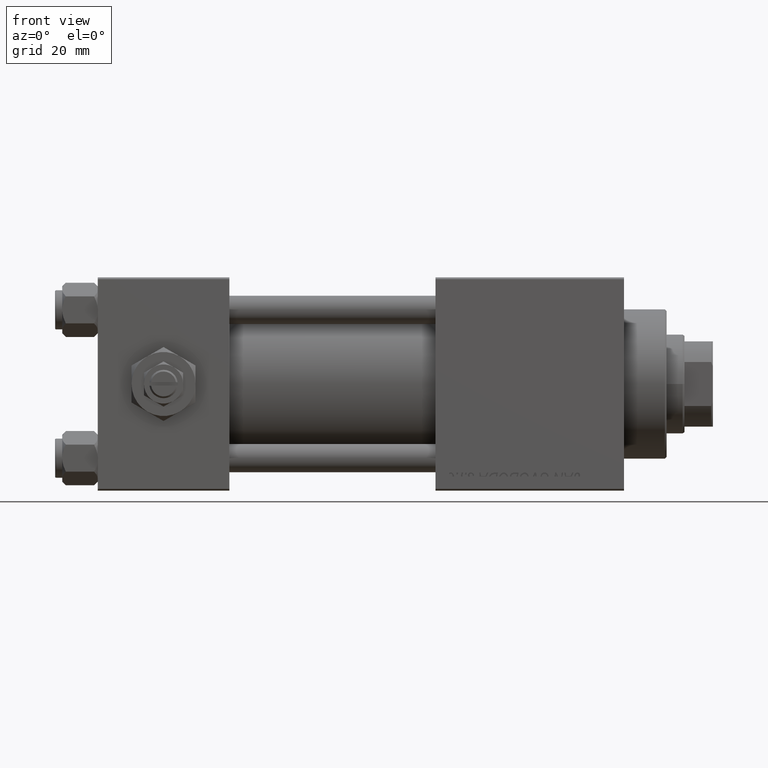
[diagram: clean part render]
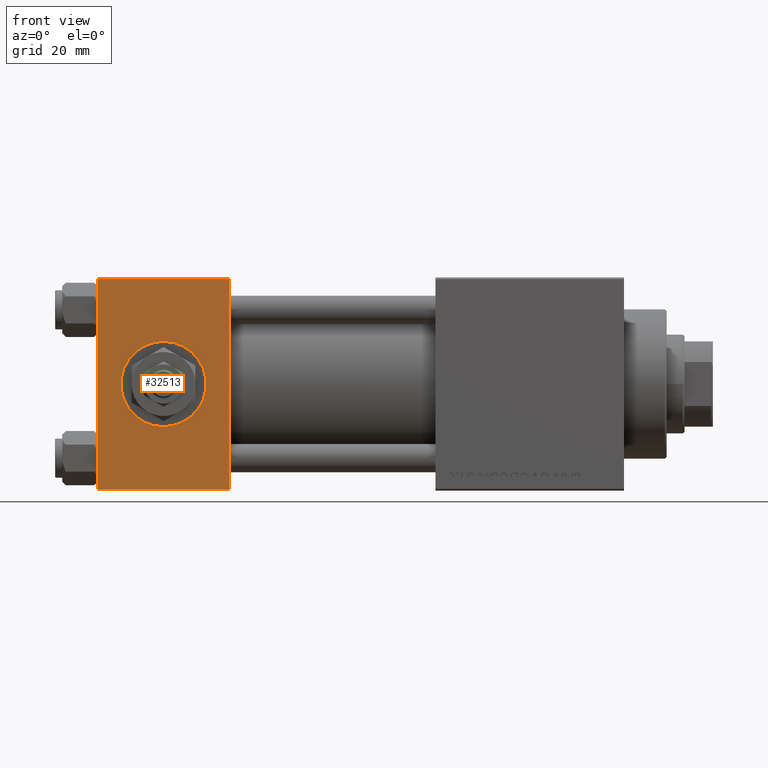
[diagram: same view with one face highlighted and labeled with its STEP entity id]
A machine part, front view. The second image highlights one B-rep face of the part: STEP entity #32513.
In plain terms, the highlighted planar face has unit normal (0, 1, 0).
Its self-contained STEP definition (entity closure, byte-faithful):
#270 = VERTEX_POINT ( 'NONE', #3207 ) ;
#500 = CARTESIAN_POINT ( 'NONE',  ( 18.50000000000000000, -30.00000000000000000, -12.00000000000000178 ) ) ;
#2185 = DIRECTION ( 'NONE',  ( 0.000000000000000000, 0.000000000000000000, -1.000000000000000000 ) ) ;
#3207 = CARTESIAN_POINT ( 'NONE',  ( 37.00000000000000000, -30.00000000000000000, -29.50000000000001776 ) ) ;
#4422 = LINE ( 'NONE', #51956, #48053 ) ;
#4831 = AXIS2_PLACEMENT_3D ( 'NONE', #43333, #7374, #48295 ) ;
#5228 = VERTEX_POINT ( 'NONE', #500 ) ;
#7340 = DIRECTION ( 'NONE',  ( 0.000000000000000000, 0.000000000000000000, -1.000000000000000000 ) ) ;
#7374 = DIRECTION ( 'NONE',  ( -0.000000000000000000, 1.000000000000000000, 0.000000000000000000 ) ) ;
#7907 = ORIENTED_EDGE ( 'NONE', *, *, #41885, .T. ) ;
#10169 = ORIENTED_EDGE ( 'NONE', *, *, #51531, .T. ) ;
#11303 = FACE_BOUND ( 'NONE', #35669, .T. ) ;
#11775 = ORIENTED_EDGE ( 'NONE', *, *, #18437, .T. ) ;
#13007 = DIRECTION ( 'NONE',  ( 0.000000000000000000, 0.000000000000000000, -1.000000000000000000 ) ) ;
#15154 = CARTESIAN_POINT ( 'NONE',  ( 0.000000000000000000, -30.00000000000000000, -29.50000000000001776 ) ) ;
#16062 = LINE ( 'NONE', #44161, #41821 ) ;
#16282 = CARTESIAN_POINT ( 'NONE',  ( 0.000000000000000000, -30.00000000000000000, 29.49999999999999289 ) ) ;
#16903 = VERTEX_POINT ( 'NONE', #40586 ) ;
#17315 = CIRCLE ( 'NONE', #46700, 12.00000000000000178 ) ;
#17469 = ORIENTED_EDGE ( 'NONE', *, *, #47493, .F. ) ;
#18437 = EDGE_CURVE ( 'NONE', #39599, #41814, #4422, .T. ) ;
#18459 = CARTESIAN_POINT ( 'NONE',  ( 37.00000000000000000, -30.00000000000000000, 29.99999999999999289 ) ) ;
#18814 = CARTESIAN_POINT ( 'NONE',  ( 18.50000000000000000, -30.00000000000000000, 12.00000000000000178 ) ) ;
#19378 = CIRCLE ( 'NONE', #26108, 12.00000000000000178 ) ;
#19654 = ORIENTED_EDGE ( 'NONE', *, *, #29841, .F. ) ;
#20124 = LINE ( 'NONE', #23815, #23170 ) ;
#23170 = VECTOR ( 'NONE', #47949, 1000.000000000000000 ) ;
#23285 = CARTESIAN_POINT ( 'NONE',  ( 18.50000000000000000, -30.00000000000000000, 0.000000000000000000 ) ) ;
#23815 = CARTESIAN_POINT ( 'NONE',  ( 37.00000000000000000, -30.00000000000000000, 29.49999999999999289 ) ) ;
#26108 = AXIS2_PLACEMENT_3D ( 'NONE', #23285, #43227, #39315 ) ;
#26832 = FACE_OUTER_BOUND ( 'NONE', #48108, .T. ) ;
#29841 = EDGE_CURVE ( 'NONE', #16903, #270, #46037, .T. ) ;
#30784 = VECTOR ( 'NONE', #2185, 1000.000000000000000 ) ;
#32513 = ADVANCED_FACE ( 'NONE', ( #11303, #26832 ), #42828, .F. ) ;
#34307 = VERTEX_POINT ( 'NONE', #18814 ) ;
#35669 = EDGE_LOOP ( 'NONE', ( #17469, #46248 ) ) ;
#39315 = DIRECTION ( 'NONE',  ( 0.000000000000000000, 0.000000000000000000, -1.000000000000000000 ) ) ;
#39599 = VERTEX_POINT ( 'NONE', #16282 ) ;
#40266 = EDGE_CURVE ( 'NONE', #34307, #5228, #19378, .T. ) ;
#40586 = CARTESIAN_POINT ( 'NONE',  ( 37.00000000000000000, -30.00000000000000000, 29.49999999999999289 ) ) ;
#41814 = VERTEX_POINT ( 'NONE', #15154 ) ;
#41821 = VECTOR ( 'NONE', #48096, 1000.000000000000000 ) ;
#41885 = EDGE_CURVE ( 'NONE', #16903, #39599, #20124, .T. ) ;
#42828 = PLANE ( 'NONE',  #4831 ) ;
#43227 = DIRECTION ( 'NONE',  ( 0.000000000000000000, -1.000000000000000000, -8.673617379884036705E-17 ) ) ;
#43333 = CARTESIAN_POINT ( 'NONE',  ( 37.00000000000000000, -30.00000000000000000, 29.99999999999999289 ) ) ;
#44161 = CARTESIAN_POINT ( 'NONE',  ( 37.00000000000000000, -30.00000000000000000, -29.50000000000001776 ) ) ;
#45299 = DIRECTION ( 'NONE',  ( 0.000000000000000000, -1.000000000000000000, -8.673617379884036705E-17 ) ) ;
#46037 = LINE ( 'NONE', #18459, #30784 ) ;
#46248 = ORIENTED_EDGE ( 'NONE', *, *, #40266, .F. ) ;
#46700 = AXIS2_PLACEMENT_3D ( 'NONE', #48979, #45299, #13007 ) ;
#47493 = EDGE_CURVE ( 'NONE', #5228, #34307, #17315, .T. ) ;
#47949 = DIRECTION ( 'NONE',  ( -1.000000000000000000, 0.000000000000000000, 0.000000000000000000 ) ) ;
#48053 = VECTOR ( 'NONE', #7340, 1000.000000000000000 ) ;
#48096 = DIRECTION ( 'NONE',  ( 1.000000000000000000, 0.000000000000000000, 0.000000000000000000 ) ) ;
#48108 = EDGE_LOOP ( 'NONE', ( #11775, #10169, #19654, #7907 ) ) ;
#48295 = DIRECTION ( 'NONE',  ( 0.000000000000000000, -0.000000000000000000, 1.000000000000000000 ) ) ;
#48979 = CARTESIAN_POINT ( 'NONE',  ( 18.50000000000000000, -30.00000000000000000, 0.000000000000000000 ) ) ;
#51531 = EDGE_CURVE ( 'NONE', #41814, #270, #16062, .T. ) ;
#51956 = CARTESIAN_POINT ( 'NONE',  ( 0.000000000000000000, -30.00000000000000000, 29.99999999999999289 ) ) ;